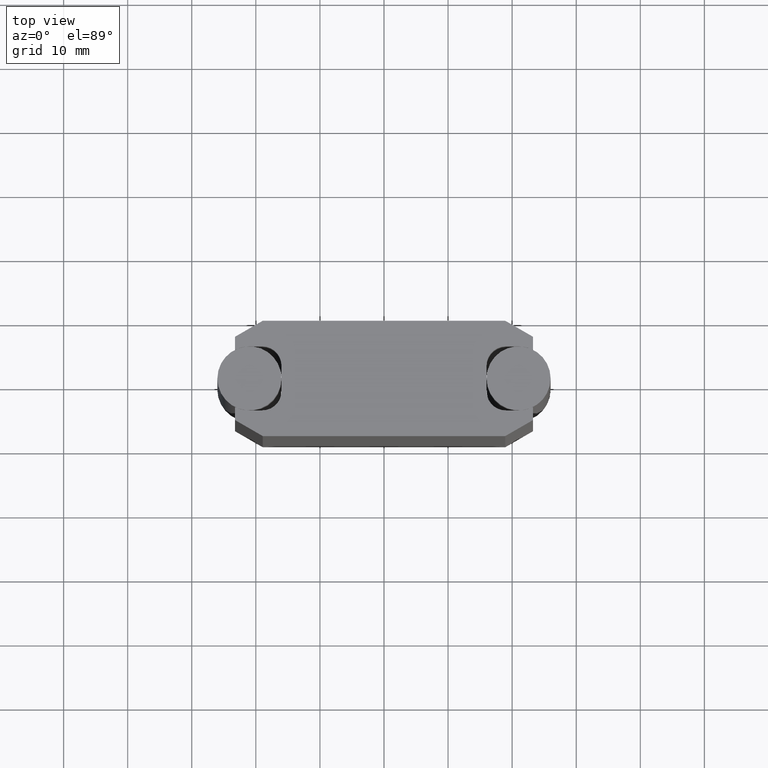
[diagram: clean part render]
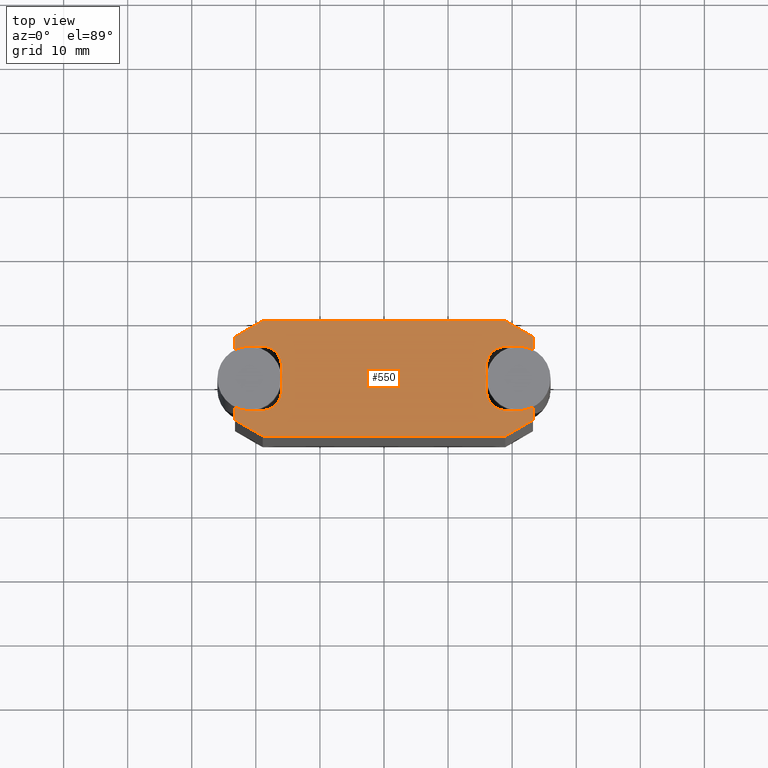
[diagram: same view with one face highlighted and labeled with its STEP entity id]
A machine part, top view. The second image highlights one B-rep face of the part: STEP entity #550.
In plain terms, the highlighted planar face has unit normal (0, 0, 1).
Its self-contained STEP definition (entity closure, byte-faithful):
#65=FACE_OUTER_BOUND('',#94,.T.);
#94=EDGE_LOOP('',(#475,#476,#477,#478,#479,#480,#481,#482,#483,#484,#485,
#486,#487,#488,#489,#490,#491,#492,#493,#494,#495,#496,#497,#498));
#115=LINE('',#889,#172);
#118=LINE('',#897,#175);
#120=LINE('',#901,#177);
#122=LINE('',#905,#179);
#124=LINE('',#909,#181);
#126=LINE('',#913,#183);
#129=LINE('',#921,#186);
#132=LINE('',#929,#189);
#135=LINE('',#937,#192);
#138=LINE('',#945,#195);
#140=LINE('',#949,#197);
#142=LINE('',#953,#199);
#144=LINE('',#957,#201);
#146=LINE('',#961,#203);
#149=LINE('',#969,#206);
#152=LINE('',#977,#209);
#172=VECTOR('',#712,10.);
#175=VECTOR('',#721,10.);
#177=VECTOR('',#725,10.);
#179=VECTOR('',#729,10.);
#181=VECTOR('',#733,10.);
#183=VECTOR('',#737,10.);
#186=VECTOR('',#746,10.);
#189=VECTOR('',#755,10.);
#192=VECTOR('',#764,10.);
#195=VECTOR('',#773,10.);
#197=VECTOR('',#777,10.);
#199=VECTOR('',#781,10.);
#201=VECTOR('',#785,10.);
#203=VECTOR('',#789,10.);
#206=VECTOR('',#798,10.);
#209=VECTOR('',#807,10.);
#220=CIRCLE('',#631,4.99999999999993);
#221=CIRCLE('',#638,5.);
#222=CIRCLE('',#641,3.00000000000001);
#223=CIRCLE('',#644,3.00000000000001);
#224=CIRCLE('',#647,5.);
#225=CIRCLE('',#654,5.);
#226=CIRCLE('',#657,3.00000000000001);
#227=CIRCLE('',#660,3.00000000000001);
#254=VERTEX_POINT('',#886);
#255=VERTEX_POINT('',#888);
#256=VERTEX_POINT('',#892);
#257=VERTEX_POINT('',#896);
#258=VERTEX_POINT('',#900);
#259=VERTEX_POINT('',#904);
#260=VERTEX_POINT('',#908);
#261=VERTEX_POINT('',#912);
#262=VERTEX_POINT('',#916);
#263=VERTEX_POINT('',#920);
#264=VERTEX_POINT('',#924);
#265=VERTEX_POINT('',#928);
#266=VERTEX_POINT('',#932);
#267=VERTEX_POINT('',#936);
#268=VERTEX_POINT('',#940);
#269=VERTEX_POINT('',#944);
#270=VERTEX_POINT('',#948);
#271=VERTEX_POINT('',#952);
#272=VERTEX_POINT('',#956);
#273=VERTEX_POINT('',#960);
#274=VERTEX_POINT('',#964);
#275=VERTEX_POINT('',#968);
#276=VERTEX_POINT('',#972);
#277=VERTEX_POINT('',#976);
#305=EDGE_CURVE('',#255,#254,#115,.T.);
#307=EDGE_CURVE('',#256,#255,#220,.T.);
#309=EDGE_CURVE('',#257,#256,#118,.T.);
#311=EDGE_CURVE('',#258,#257,#120,.T.);
#313=EDGE_CURVE('',#259,#258,#122,.T.);
#315=EDGE_CURVE('',#260,#259,#124,.T.);
#317=EDGE_CURVE('',#261,#260,#126,.T.);
#319=EDGE_CURVE('',#262,#261,#221,.T.);
#321=EDGE_CURVE('',#263,#262,#129,.T.);
#323=EDGE_CURVE('',#264,#263,#222,.T.);
#325=EDGE_CURVE('',#265,#264,#132,.T.);
#327=EDGE_CURVE('',#266,#265,#223,.T.);
#329=EDGE_CURVE('',#267,#266,#135,.T.);
#331=EDGE_CURVE('',#268,#267,#224,.T.);
#333=EDGE_CURVE('',#269,#268,#138,.T.);
#335=EDGE_CURVE('',#270,#269,#140,.T.);
#337=EDGE_CURVE('',#271,#270,#142,.T.);
#339=EDGE_CURVE('',#272,#271,#144,.T.);
#341=EDGE_CURVE('',#273,#272,#146,.T.);
#343=EDGE_CURVE('',#274,#273,#225,.T.);
#345=EDGE_CURVE('',#275,#274,#149,.T.);
#347=EDGE_CURVE('',#276,#275,#226,.T.);
#349=EDGE_CURVE('',#277,#276,#152,.T.);
#351=EDGE_CURVE('',#254,#277,#227,.T.);
#475=ORIENTED_EDGE('',*,*,#351,.T.);
#476=ORIENTED_EDGE('',*,*,#349,.T.);
#477=ORIENTED_EDGE('',*,*,#347,.T.);
#478=ORIENTED_EDGE('',*,*,#345,.T.);
#479=ORIENTED_EDGE('',*,*,#343,.T.);
#480=ORIENTED_EDGE('',*,*,#341,.T.);
#481=ORIENTED_EDGE('',*,*,#339,.T.);
#482=ORIENTED_EDGE('',*,*,#337,.T.);
#483=ORIENTED_EDGE('',*,*,#335,.T.);
#484=ORIENTED_EDGE('',*,*,#333,.T.);
#485=ORIENTED_EDGE('',*,*,#331,.T.);
#486=ORIENTED_EDGE('',*,*,#329,.T.);
#487=ORIENTED_EDGE('',*,*,#327,.T.);
#488=ORIENTED_EDGE('',*,*,#325,.T.);
#489=ORIENTED_EDGE('',*,*,#323,.T.);
#490=ORIENTED_EDGE('',*,*,#321,.T.);
#491=ORIENTED_EDGE('',*,*,#319,.T.);
#492=ORIENTED_EDGE('',*,*,#317,.T.);
#493=ORIENTED_EDGE('',*,*,#315,.T.);
#494=ORIENTED_EDGE('',*,*,#313,.T.);
#495=ORIENTED_EDGE('',*,*,#311,.T.);
#496=ORIENTED_EDGE('',*,*,#309,.T.);
#497=ORIENTED_EDGE('',*,*,#307,.T.);
#498=ORIENTED_EDGE('',*,*,#305,.T.);
#522=PLANE('',#661);
#550=ADVANCED_FACE('',(#65),#522,.T.);
#631=AXIS2_PLACEMENT_3D('',#893,#716,#717);
#638=AXIS2_PLACEMENT_3D('',#917,#741,#742);
#641=AXIS2_PLACEMENT_3D('',#925,#750,#751);
#644=AXIS2_PLACEMENT_3D('',#933,#759,#760);
#647=AXIS2_PLACEMENT_3D('',#941,#768,#769);
#654=AXIS2_PLACEMENT_3D('',#965,#793,#794);
#657=AXIS2_PLACEMENT_3D('',#973,#802,#803);
#660=AXIS2_PLACEMENT_3D('',#980,#811,#812);
#661=AXIS2_PLACEMENT_3D('',#981,#813,#814);
#712=DIRECTION('',(-1.,0.,0.));
#716=DIRECTION('center_axis',(0.,0.,-1.));
#717=DIRECTION('ref_axis',(0.,-1.,0.));
#721=DIRECTION('',(-2.18240967656226E-15,1.,0.));
#725=DIRECTION('',(0.866025403783333,0.500000000001915,0.));
#729=DIRECTION('',(1.,0.,0.));
#733=DIRECTION('',(0.866025403783344,-0.500000000001895,0.));
#737=DIRECTION('',(0.,-1.,0.));
#741=DIRECTION('center_axis',(0.,0.,-1.));
#742=DIRECTION('ref_axis',(-0.449999999997849,-0.893028554975671,0.));
#746=DIRECTION('',(-1.,0.,0.));
#750=DIRECTION('center_axis',(0.,0.,-1.));
#751=DIRECTION('ref_axis',(0.,-1.,0.));
#755=DIRECTION('',(0.,-1.,0.));
#759=DIRECTION('center_axis',(0.,0.,-1.));
#760=DIRECTION('ref_axis',(1.,0.,0.));
#764=DIRECTION('',(1.,0.,0.));
#768=DIRECTION('center_axis',(0.,0.,-1.));
#769=DIRECTION('ref_axis',(0.,1.,0.));
#773=DIRECTION('',(0.,-1.,0.));
#777=DIRECTION('',(-0.866025403783335,-0.500000000001912,0.));
#781=DIRECTION('',(-1.,0.,0.));
#785=DIRECTION('',(-0.866025403783343,0.500000000001898,0.));
#789=DIRECTION('',(0.,1.,0.));
#793=DIRECTION('center_axis',(0.,0.,-1.));
#794=DIRECTION('ref_axis',(0.449999999996703,0.893028554976249,0.));
#798=DIRECTION('',(1.,0.,0.));
#802=DIRECTION('center_axis',(0.,0.,-1.));
#803=DIRECTION('ref_axis',(0.,1.,0.));
#807=DIRECTION('',(0.,1.,0.));
#811=DIRECTION('center_axis',(0.,0.,-1.));
#812=DIRECTION('ref_axis',(-1.,0.,0.));
#813=DIRECTION('center_axis',(0.,0.,1.));
#814=DIRECTION('ref_axis',(1.,0.,0.));
#886=CARTESIAN_POINT('',(18.9999999998345,-5.00000000013735,50.));
#888=CARTESIAN_POINT('',(20.9999999998345,-5.00000000013735,50.));
#889=CARTESIAN_POINT('',(18.9999999998345,-5.00000000013735,50.));
#892=CARTESIAN_POINT('',(23.2499999998236,-4.46514277501578,50.));
#893=CARTESIAN_POINT('Origin',(20.9999999998345,-1.37418965096003E-10,50.));
#896=CARTESIAN_POINT('',(23.2499999998236,-6.50000000012483,50.));
#897=CARTESIAN_POINT('',(23.2499999998236,-4.46514277501578,50.));
#900=CARTESIAN_POINT('',(18.9198729809776,-9.00000000009364,50.));
#901=CARTESIAN_POINT('',(23.2499999998236,-6.50000000012483,50.));
#904=CARTESIAN_POINT('',(-18.9198729809776,-9.00000000009364,50.));
#905=CARTESIAN_POINT('',(18.9198729809776,-9.00000000009364,50.));
#908=CARTESIAN_POINT('',(-23.2500000001548,-6.49999999993376,50.));
#909=CARTESIAN_POINT('',(-18.9198729809776,-9.00000000009364,50.));
#912=CARTESIAN_POINT('',(-23.2500000001548,-4.46514277501571,50.));
#913=CARTESIAN_POINT('',(-23.2500000001548,-6.49999999993376,50.));
#916=CARTESIAN_POINT('',(-21.0000000001656,-5.00000000013735,50.));
#917=CARTESIAN_POINT('Origin',(-21.0000000001656,-1.37418965096003E-10,
50.));
#920=CARTESIAN_POINT('',(-19.0000000001656,-5.00000000013735,50.));
#921=CARTESIAN_POINT('',(-21.0000000001656,-5.00000000013735,50.));
#924=CARTESIAN_POINT('',(-16.0000000001656,-2.00000000013731,50.));
#925=CARTESIAN_POINT('Origin',(-19.0000000001656,-2.00000000013731,50.));
#928=CARTESIAN_POINT('',(-16.0000000001656,1.99999999986247,50.));
#929=CARTESIAN_POINT('',(-16.0000000001656,-2.00000000013731,50.));
#932=CARTESIAN_POINT('',(-19.0000000001656,4.99999999986251,50.));
#933=CARTESIAN_POINT('Origin',(-19.0000000001656,1.99999999986247,50.));
#936=CARTESIAN_POINT('',(-21.0000000001656,4.99999999986251,50.));
#937=CARTESIAN_POINT('',(-19.0000000001656,4.99999999986251,50.));
#940=CARTESIAN_POINT('',(-23.2500000001949,4.46514277472062,50.));
#941=CARTESIAN_POINT('Origin',(-21.0000000001656,-1.37418965096003E-10,
50.));
#944=CARTESIAN_POINT('',(-23.2500000001949,6.49999999990285,50.));
#945=CARTESIAN_POINT('',(-23.2500000001949,4.46514277472062,50.));
#948=CARTESIAN_POINT('',(-18.9198729812638,8.99999999992076,50.));
#949=CARTESIAN_POINT('',(-23.2500000001949,6.49999999990285,50.));
#952=CARTESIAN_POINT('',(18.9198729809177,8.99999999992076,50.));
#953=CARTESIAN_POINT('',(-18.9198729812638,8.99999999992076,50.));
#956=CARTESIAN_POINT('',(23.249999999818,6.49999999992076,50.));
#957=CARTESIAN_POINT('',(18.9198729809177,8.99999999992076,50.));
#960=CARTESIAN_POINT('',(23.249999999818,4.46514277474378,50.));
#961=CARTESIAN_POINT('',(23.249999999818,6.49999999992076,50.));
#964=CARTESIAN_POINT('',(20.9999999998345,4.99999999986251,50.));
#965=CARTESIAN_POINT('Origin',(20.9999999998345,-1.37418965096003E-10,50.));
#968=CARTESIAN_POINT('',(18.9999999998346,4.99999999986251,50.));
#969=CARTESIAN_POINT('',(20.9999999998345,4.99999999986251,50.));
#972=CARTESIAN_POINT('',(15.9999999998345,1.99999999986254,50.));
#973=CARTESIAN_POINT('Origin',(18.9999999998346,1.99999999986254,50.));
#976=CARTESIAN_POINT('',(15.9999999998345,-2.00000000013731,50.));
#977=CARTESIAN_POINT('',(15.9999999998345,1.99999999986254,50.));
#980=CARTESIAN_POINT('Origin',(18.9999999998345,-2.00000000013731,50.));
#981=CARTESIAN_POINT('Origin',(-1.57247520116882E-10,-8.2591095813202E-11,
50.));